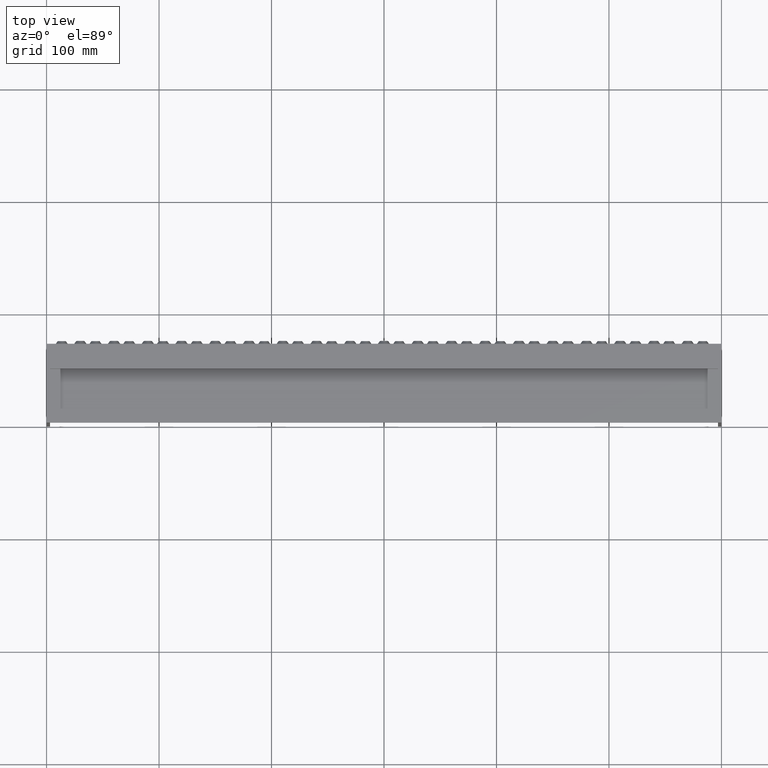
[diagram: clean part render]
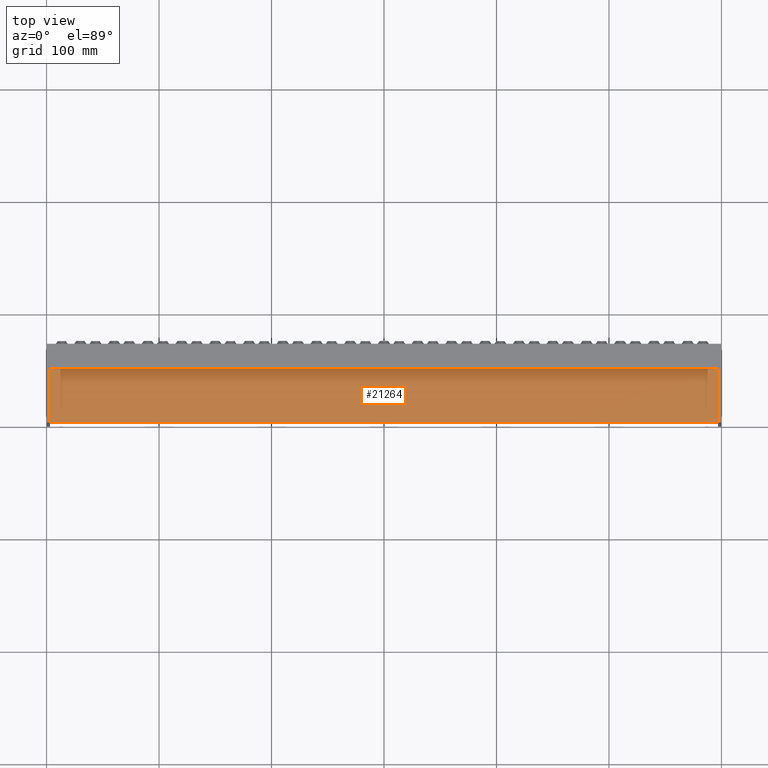
[diagram: same view with one face highlighted and labeled with its STEP entity id]
A machine part, top view. The second image highlights one B-rep face of the part: STEP entity #21264.
In plain terms, the highlighted planar face has unit normal (0, -0, -1).
Its self-contained STEP definition (entity closure, byte-faithful):
#1801 = ORIENTED_EDGE ( 'NONE', *, *, #11488, .T. ) ;
#2627 = EDGE_CURVE ( 'NONE', #20530, #8684, #15291, .T. ) ;
#2903 = EDGE_CURVE ( 'NONE', #3877, #8684, #21045, .T. ) ;
#3299 = PLANE ( 'NONE',  #3493 ) ;
#3340 = ORIENTED_EDGE ( 'NONE', *, *, #2903, .T. ) ;
#3493 = AXIS2_PLACEMENT_3D ( 'NONE', #15514, #21711, #9473 ) ;
#3877 = VERTEX_POINT ( 'NONE', #24600 ) ;
#4112 = VECTOR ( 'NONE', #5856, 1000.000000000000000 ) ;
#5533 = ORIENTED_EDGE ( 'NONE', *, *, #2627, .F. ) ;
#5856 = DIRECTION ( 'NONE',  ( -0.0000000000000000000, 1.000000000000000000, -3.614007241618339900E-017 ) ) ;
#6383 = CARTESIAN_POINT ( 'NONE',  ( 297.0000000000000000, 48.00000000000011400, -13.00000000000000000 ) ) ;
#8684 = VERTEX_POINT ( 'NONE', #20473 ) ;
#9473 = DIRECTION ( 'NONE',  ( 0.0000000000000000000, 1.000000000000000000, -3.614007241618339900E-017 ) ) ;
#11488 = EDGE_CURVE ( 'NONE', #18006, #3877, #21435, .T. ) ;
#11867 = VECTOR ( 'NONE', #21817, 1000.000000000000000 ) ;
#12148 = FACE_OUTER_BOUND ( 'NONE', #22265, .T. ) ;
#12467 = CARTESIAN_POINT ( 'NONE',  ( -297.0000000000000000, 48.00000000000011400, -13.00000000000000000 ) ) ;
#15291 = LINE ( 'NONE', #18426, #26160 ) ;
#15514 = CARTESIAN_POINT ( 'NONE',  ( -373.1577310586390000, 48.00000000000011400, -13.00000000000000000 ) ) ;
#17680 = CARTESIAN_POINT ( 'NONE',  ( -373.1577310586390000, 5.050613422867832400E-016, -12.99999999999999800 ) ) ;
#18006 = VERTEX_POINT ( 'NONE', #19337 ) ;
#18426 = CARTESIAN_POINT ( 'NONE',  ( -373.1577310586390000, 48.00000000000011400, -13.00000000000000000 ) ) ;
#18510 = DIRECTION ( 'NONE',  ( 1.000000000000000000, -0.0000000000000000000, -0.0000000000000000000 ) ) ;
#19337 = CARTESIAN_POINT ( 'NONE',  ( -297.0000000000000000, 1.100034366357598800E-013, -13.00000000000003900 ) ) ;
#19637 = LINE ( 'NONE', #12467, #25039 ) ;
#20473 = CARTESIAN_POINT ( 'NONE',  ( 297.0000000000000000, 48.00000000000011400, -13.00000000000000000 ) ) ;
#20530 = VERTEX_POINT ( 'NONE', #20849 ) ;
#20571 = DIRECTION ( 'NONE',  ( 0.0000000000000000000, -1.000000000000000000, 3.614007241618339900E-017 ) ) ;
#20849 = CARTESIAN_POINT ( 'NONE',  ( -297.0000000000000000, 48.00000000000011400, -13.00000000000000000 ) ) ;
#21045 = LINE ( 'NONE', #6383, #4112 ) ;
#21264 = ADVANCED_FACE ( 'NONE', ( #12148 ), #3299, .F. ) ;
#21435 = LINE ( 'NONE', #17680, #11867 ) ;
#21711 = DIRECTION ( 'NONE',  ( 0.0000000000000000000, -3.614007241618339900E-017, -1.000000000000000000 ) ) ;
#21817 = DIRECTION ( 'NONE',  ( 1.000000000000000000, -0.0000000000000000000, -0.0000000000000000000 ) ) ;
#22265 = EDGE_LOOP ( 'NONE', ( #5533, #23671, #1801, #3340 ) ) ;
#23671 = ORIENTED_EDGE ( 'NONE', *, *, #26109, .T. ) ;
#24600 = CARTESIAN_POINT ( 'NONE',  ( 297.0000000000000000, 5.050613422867832400E-016, -12.99999999999999800 ) ) ;
#25039 = VECTOR ( 'NONE', #20571, 1000.000000000000000 ) ;
#26109 = EDGE_CURVE ( 'NONE', #20530, #18006, #19637, .T. ) ;
#26160 = VECTOR ( 'NONE', #18510, 1000.000000000000000 ) ;